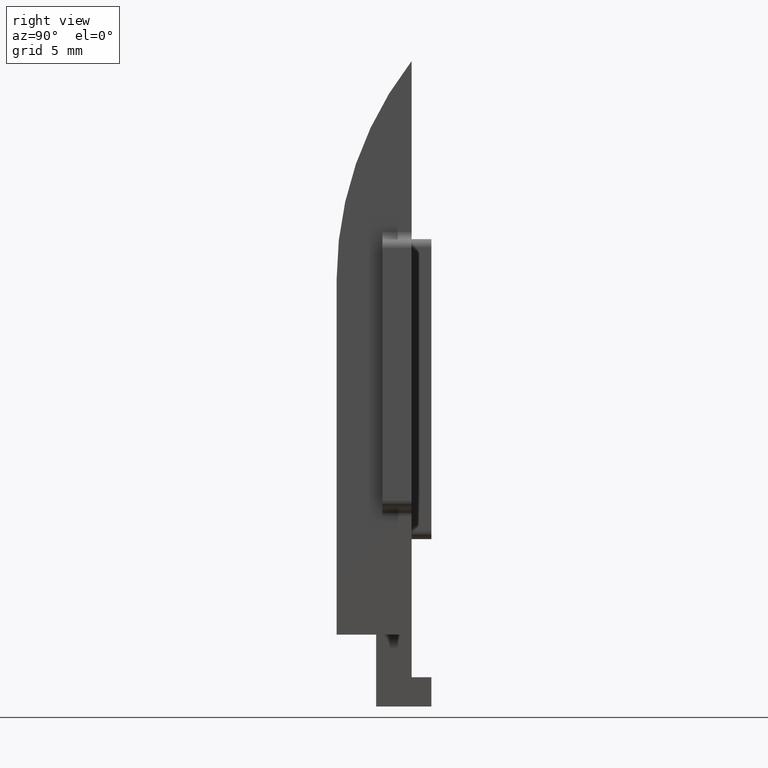
[diagram: clean part render]
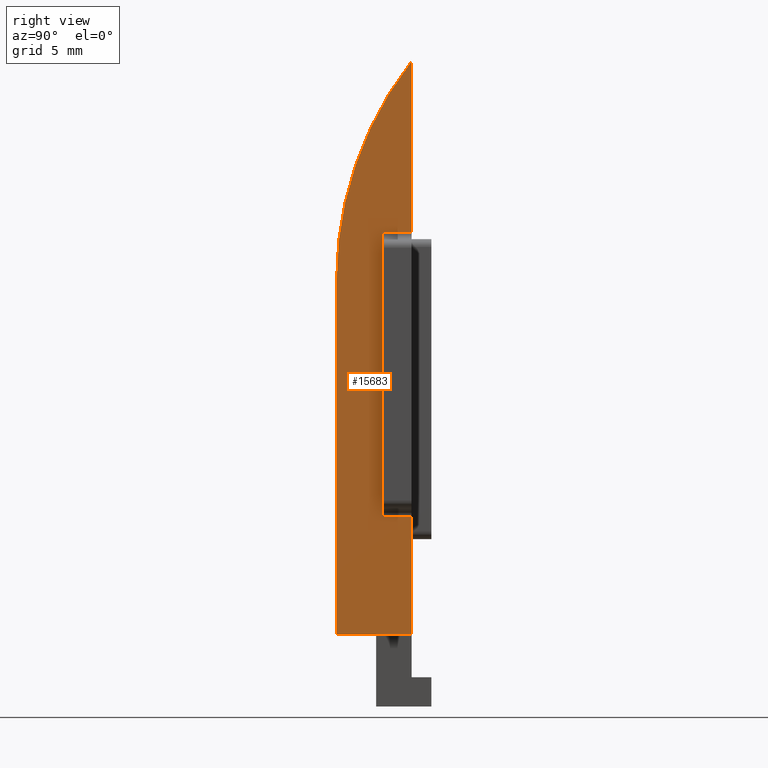
[diagram: same view with one face highlighted and labeled with its STEP entity id]
A machine part, right view. The second image highlights one B-rep face of the part: STEP entity #15683.
In plain terms, the highlighted planar face has unit normal (1, 0, 0).
Its self-contained STEP definition (entity closure, byte-faithful):
#32 = LINE ( 'NONE', #4785, #11280 ) ;
#117 = CARTESIAN_POINT ( 'NONE',  ( 9.000000000000000000, 4.728956136456109682, 36.29999999999999716 ) ) ;
#142 = DIRECTION ( 'NONE',  ( 0.000000000000000000, 1.000000000000000000, 0.000000000000000000 ) ) ;
#379 = EDGE_CURVE ( 'NONE', #7454, #14381, #10345, .T. ) ;
#1111 = CARTESIAN_POINT ( 'NONE',  ( 9.000000000000000000, -1.387778780781445676E-14, 22.50000000000001066 ) ) ;
#1771 = DIRECTION ( 'NONE',  ( 1.000000000000000000, -0.000000000000000000, 0.000000000000000000 ) ) ;
#2437 = ORIENTED_EDGE ( 'NONE', *, *, #5986, .F. ) ;
#2715 = VERTEX_POINT ( 'NONE', #3890 ) ;
#2741 = CARTESIAN_POINT ( 'NONE',  ( 9.000000000000000000, 0.000000000000000000, 36.29999999999999716 ) ) ;
#2819 = CARTESIAN_POINT ( 'NONE',  ( 9.000000000000000000, 4.750000000000000888, 7.499999999999975131 ) ) ;
#2849 = ORIENTED_EDGE ( 'NONE', *, *, #12096, .F. ) ;
#2881 = EDGE_CURVE ( 'NONE', #15779, #2715, #15819, .T. ) ;
#3209 = ORIENTED_EDGE ( 'NONE', *, *, #379, .F. ) ;
#3793 = VECTOR ( 'NONE', #10410, 1000.000000000000000 ) ;
#3814 = LINE ( 'NONE', #4643, #12553 ) ;
#3890 = CARTESIAN_POINT ( 'NONE',  ( 9.000000000000000000, 2.899999999999988365, 7.499999999999975131 ) ) ;
#4244 = DIRECTION ( 'NONE',  ( 0.000000000000000000, -1.000000000000000000, -1.734723475976807094E-16 ) ) ;
#4643 = CARTESIAN_POINT ( 'NONE',  ( 9.000000000000000000, 2.899999999999988365, 7.999999999999976019 ) ) ;
#4785 = CARTESIAN_POINT ( 'NONE',  ( 9.000000000000000000, 4.750000000000001776, 0.000000000000000000 ) ) ;
#4878 = VERTEX_POINT ( 'NONE', #13105 ) ;
#4951 = LINE ( 'NONE', #2741, #16085 ) ;
#4968 = DIRECTION ( 'NONE',  ( 0.000000000000000000, 1.000000000000000000, -0.000000000000000000 ) ) ;
#5421 = AXIS2_PLACEMENT_3D ( 'NONE', #9736, #1771, #11072 ) ;
#5525 = ORIENTED_EDGE ( 'NONE', *, *, #9323, .T. ) ;
#5552 = VECTOR ( 'NONE', #4244, 1000.000000000000000 ) ;
#5726 = PLANE ( 'NONE',  #5421 ) ;
#5977 = DIRECTION ( 'NONE',  ( 0.000000000000000000, -1.541976423090493168E-16, 1.000000000000000000 ) ) ;
#5986 = EDGE_CURVE ( 'NONE', #7245, #7454, #12626, .T. ) ;
#6399 = ORIENTED_EDGE ( 'NONE', *, *, #14370, .T. ) ;
#6540 = EDGE_CURVE ( 'NONE', #4878, #9163, #6967, .T. ) ;
#6893 = CIRCLE ( 'NONE', #9732, 22.50000000000000711 ) ;
#6967 = LINE ( 'NONE', #14110, #11774 ) ;
#7112 = VECTOR ( 'NONE', #9638, 1000.000000000000000 ) ;
#7245 = VERTEX_POINT ( 'NONE', #7826 ) ;
#7432 = DIRECTION ( 'NONE',  ( 1.000000000000000000, -0.000000000000000000, 0.000000000000000000 ) ) ;
#7454 = VERTEX_POINT ( 'NONE', #8523 ) ;
#7826 = CARTESIAN_POINT ( 'NONE',  ( 9.000000000000000000, 4.750000000000001776, -2.081668171172168513E-14 ) ) ;
#8129 = LINE ( 'NONE', #16955, #3793 ) ;
#8523 = CARTESIAN_POINT ( 'NONE',  ( 9.000000000000000000, -1.040834085586084257E-14, -2.081668171172168513E-14 ) ) ;
#8556 = CARTESIAN_POINT ( 'NONE',  ( 9.000000000000000000, 4.749999999999999112, 25.49999999999997868 ) ) ;
#8655 = VERTEX_POINT ( 'NONE', #16933 ) ;
#9163 = VERTEX_POINT ( 'NONE', #8556 ) ;
#9248 = ORIENTED_EDGE ( 'NONE', *, *, #6540, .T. ) ;
#9323 = EDGE_CURVE ( 'NONE', #14425, #14381, #6893, .T. ) ;
#9638 = DIRECTION ( 'NONE',  ( -0.000000000000000000, -1.000000000000000000, -0.000000000000000000 ) ) ;
#9732 = AXIS2_PLACEMENT_3D ( 'NONE', #15477, #7432, #10138 ) ;
#9736 = CARTESIAN_POINT ( 'NONE',  ( 9.000000000000000000, 0.000000000000000000, 0.000000000000000000 ) ) ;
#10096 = EDGE_CURVE ( 'NONE', #7245, #15779, #32, .T. ) ;
#10138 = DIRECTION ( 'NONE',  ( 0.000000000000000000, 0.000000000000000000, -1.000000000000000000 ) ) ;
#10175 = FACE_OUTER_BOUND ( 'NONE', #16120, .T. ) ;
#10345 = LINE ( 'NONE', #12644, #10532 ) ;
#10410 = DIRECTION ( 'NONE',  ( 0.000000000000000000, -1.112002228190260459E-16, 1.000000000000000000 ) ) ;
#10413 = ORIENTED_EDGE ( 'NONE', *, *, #10096, .T. ) ;
#10532 = VECTOR ( 'NONE', #5977, 1000.000000000000000 ) ;
#11051 = CARTESIAN_POINT ( 'NONE',  ( 9.000000000000000000, 0.000000000000000000, -2.081668171172168513E-14 ) ) ;
#11072 = DIRECTION ( 'NONE',  ( 0.000000000000000000, 0.000000000000000000, -1.000000000000000000 ) ) ;
#11280 = VECTOR ( 'NONE', #16789, 1000.000000000000000 ) ;
#11470 = ORIENTED_EDGE ( 'NONE', *, *, #2881, .T. ) ;
#11774 = VECTOR ( 'NONE', #4968, 1000.000000000000000 ) ;
#12096 = EDGE_CURVE ( 'NONE', #4878, #2715, #3814, .T. ) ;
#12553 = VECTOR ( 'NONE', #12667, 1000.000000000000000 ) ;
#12626 = LINE ( 'NONE', #11051, #5552 ) ;
#12644 = CARTESIAN_POINT ( 'NONE',  ( 9.000000000000000000, -1.040834085586084257E-14, 0.000000000000000000 ) ) ;
#12667 = DIRECTION ( 'NONE',  ( -0.000000000000000000, 1.530638361156006245E-16, -1.000000000000000000 ) ) ;
#13105 = CARTESIAN_POINT ( 'NONE',  ( 9.000000000000000000, 2.899999999999986589, 25.49999999999997868 ) ) ;
#14110 = CARTESIAN_POINT ( 'NONE',  ( 9.000000000000000000, 0.000000000000000000, 25.49999999999997868 ) ) ;
#14370 = EDGE_CURVE ( 'NONE', #9163, #8655, #8129, .T. ) ;
#14381 = VERTEX_POINT ( 'NONE', #1111 ) ;
#14425 = VERTEX_POINT ( 'NONE', #117 ) ;
#14953 = ORIENTED_EDGE ( 'NONE', *, *, #16094, .F. ) ;
#15477 = CARTESIAN_POINT ( 'NONE',  ( 9.000000000000000000, 22.49999999999999289, 22.50000000000001066 ) ) ;
#15683 = ADVANCED_FACE ( 'NONE', ( #10175 ), #5726, .T. ) ;
#15779 = VERTEX_POINT ( 'NONE', #2819 ) ;
#15819 = LINE ( 'NONE', #16050, #7112 ) ;
#16050 = CARTESIAN_POINT ( 'NONE',  ( 9.000000000000000000, 0.000000000000000000, 7.499999999999975131 ) ) ;
#16085 = VECTOR ( 'NONE', #142, 1000.000000000000000 ) ;
#16094 = EDGE_CURVE ( 'NONE', #14425, #8655, #4951, .T. ) ;
#16120 = EDGE_LOOP ( 'NONE', ( #10413, #11470, #2849, #9248, #6399, #14953, #5525, #3209, #2437 ) ) ;
#16789 = DIRECTION ( 'NONE',  ( 0.000000000000000000, -1.112002228190260459E-16, 1.000000000000000000 ) ) ;
#16933 = CARTESIAN_POINT ( 'NONE',  ( 9.000000000000000000, 4.749999999999997335, 36.29999999999999716 ) ) ;
#16955 = CARTESIAN_POINT ( 'NONE',  ( 9.000000000000000000, 4.750000000000001776, 0.000000000000000000 ) ) ;